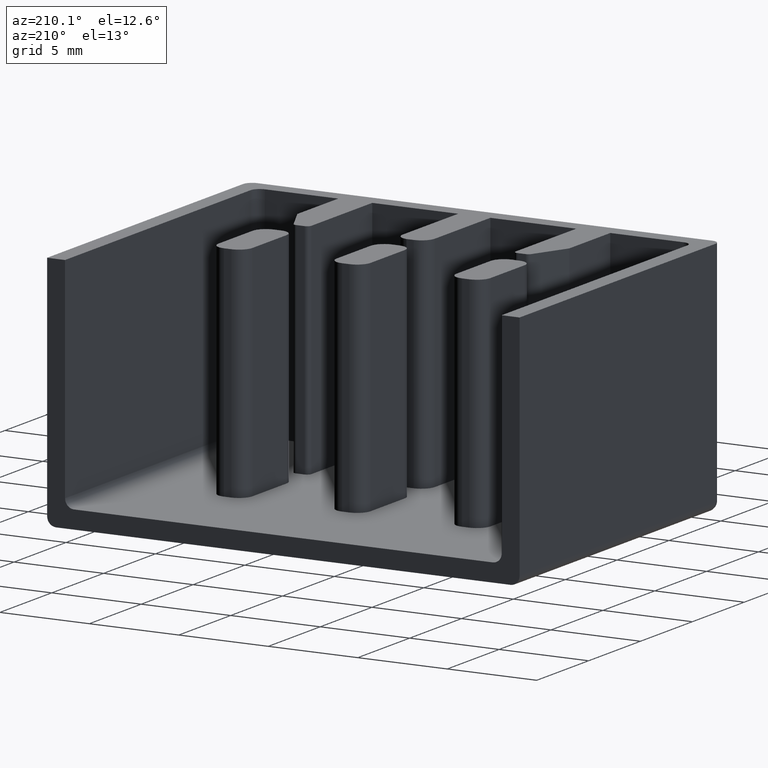
[diagram: clean part render]
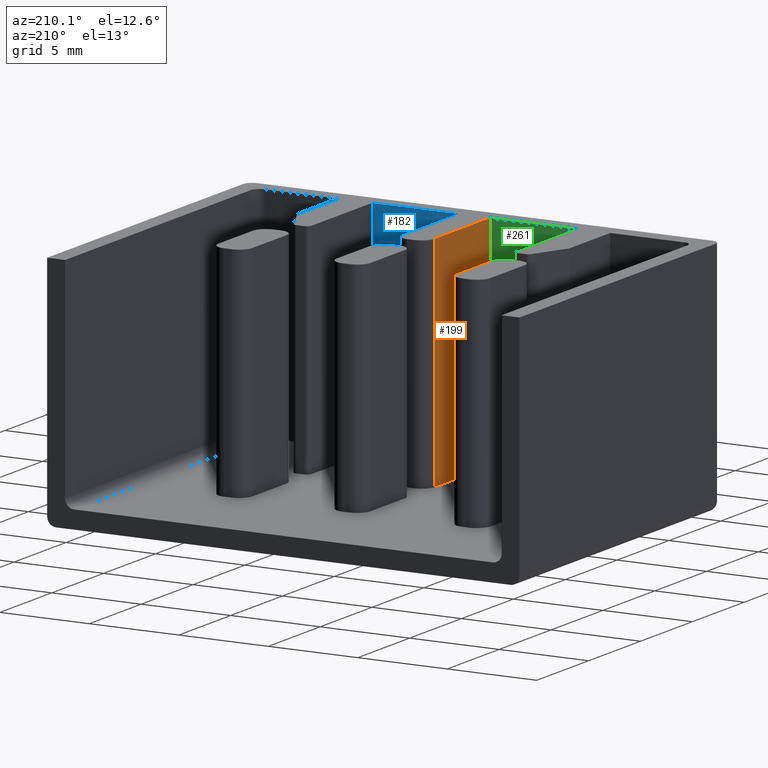
[diagram: same view with three faces highlighted in distinct colors, each labeled with its STEP entity id]
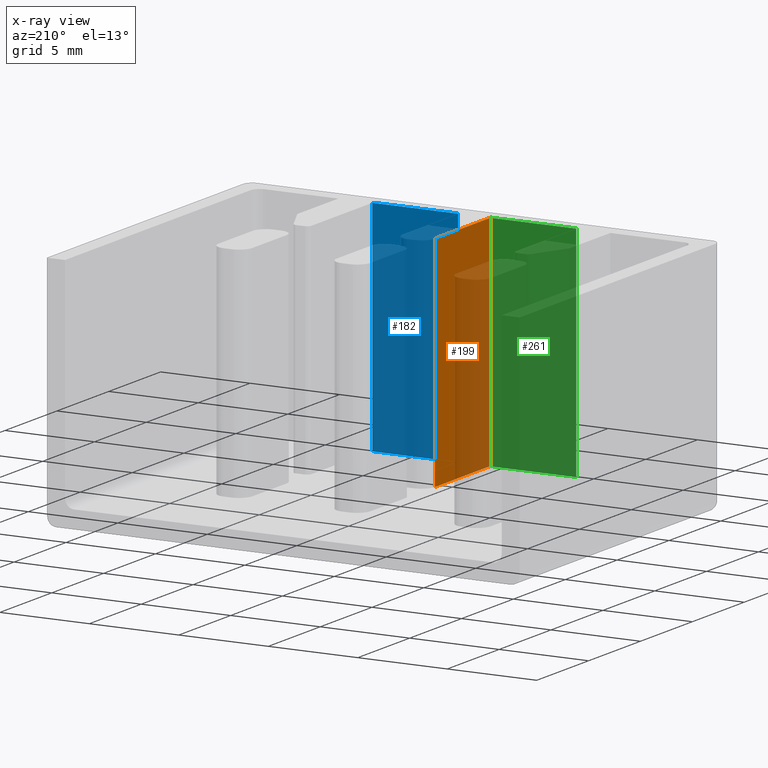
[diagram: x-ray of the same camera — body ghosted, the three highlighted faces saturated]
A machine part, auxiliary view with three faces highlighted in distinct colors.
The next image is the same camera in x-ray (body ghosted, the three faces saturated) — at least one of them is partly hidden behind the body in this view.
Their STEP definitions:

[orange] entity #199 — the highlighted planar face has unit normal (1, 0, -0).
#37 = EDGE_CURVE ( 'NONE', #754, #761, #1384, .T. ) ;
#55 = EDGE_CURVE ( 'NONE', #771, #858, #1492, .T. ) ;
#101 = EDGE_CURVE ( 'NONE', #771, #761, #1615, .T. ) ;
#178 = EDGE_CURVE ( 'NONE', #858, #754, #2214, .T. ) ;
#199 = ADVANCED_FACE ( 'NONE', ( #1701 ), #1680, .F. ) ;
#307 = VECTOR ( 'NONE', #1422, 1000.000000000000000 ) ;
#341 = VECTOR ( 'NONE', #1496, 1000.000000000000000 ) ;
#367 = VECTOR ( 'NONE', #1621, 1000.000000000000000 ) ;
#507 = AXIS2_PLACEMENT_3D ( 'NONE', #1679, #1654, #1658 ) ;
#537 = VECTOR ( 'NONE', #2173, 1000.000000000000000 ) ;
#754 = VERTEX_POINT ( 'NONE', #2010 ) ;
#761 = VERTEX_POINT ( 'NONE', #2002 ) ;
#771 = VERTEX_POINT ( 'NONE', #1976 ) ;
#858 = VERTEX_POINT ( 'NONE', #2068 ) ;
#1109 = ORIENTED_EDGE ( 'NONE', *, *, #55, .T. ) ;
#1113 = ORIENTED_EDGE ( 'NONE', *, *, #101, .F. ) ;
#1130 = ORIENTED_EDGE ( 'NONE', *, *, #178, .T. ) ;
#1150 = ORIENTED_EDGE ( 'NONE', *, *, #37, .T. ) ;
#1316 = EDGE_LOOP ( 'NONE', ( #1113, #1109, #1130, #1150 ) ) ;
#1384 = LINE ( 'NONE', #1406, #307 ) ;
#1406 = CARTESIAN_POINT ( 'NONE',  ( 12.29999999999991700, 6.349999999999885100, 1.000000000000000000 ) ) ;
#1422 = DIRECTION ( 'NONE',  ( 0.0000000000000000000, -1.000000000000000000, 0.0000000000000000000 ) ) ;
#1492 = LINE ( 'NONE', #1495, #341 ) ;
#1495 = CARTESIAN_POINT ( 'NONE',  ( 12.29999999999991700, 6.349999999999885100, 13.30000000000000100 ) ) ;
#1496 = DIRECTION ( 'NONE',  ( 0.0000000000000000000, 1.000000000000000000, 0.0000000000000000000 ) ) ;
#1602 = CARTESIAN_POINT ( 'NONE',  ( 12.29999999999991700, 1.000000000000000900, 19.68905313798537200 ) ) ;
#1615 = LINE ( 'NONE', #1602, #367 ) ;
#1621 = DIRECTION ( 'NONE',  ( -0.0000000000000000000, -0.0000000000000000000, -1.000000000000000000 ) ) ;
#1654 = DIRECTION ( 'NONE',  ( 1.000000000000000000, 0.0000000000000000000, -0.0000000000000000000 ) ) ;
#1658 = DIRECTION ( 'NONE',  ( -0.0000000000000000000, 0.0000000000000000000, -1.000000000000000000 ) ) ;
#1679 = CARTESIAN_POINT ( 'NONE',  ( 12.29999999999991700, 6.349999999999885100, 19.68905313798537200 ) ) ;
#1680 = PLANE ( 'NONE',  #507 ) ;
#1701 = FACE_OUTER_BOUND ( 'NONE', #1316, .T. ) ;
#1976 = CARTESIAN_POINT ( 'NONE',  ( 12.29999999999990300, 1.000000000000000900, 13.30000000000000100 ) ) ;
#2002 = CARTESIAN_POINT ( 'NONE',  ( 12.29999999999991700, 1.000000000000000900, 1.000000000000000000 ) ) ;
#2010 = CARTESIAN_POINT ( 'NONE',  ( 12.29999999999990300, 6.349999999999885100, 1.000000000000000900 ) ) ;
#2068 = CARTESIAN_POINT ( 'NONE',  ( 12.29999999999991700, 6.349999999999885100, 13.30000000000000100 ) ) ;
#2173 = DIRECTION ( 'NONE',  ( -0.0000000000000000000, -0.0000000000000000000, -1.000000000000000000 ) ) ;
#2204 = CARTESIAN_POINT ( 'NONE',  ( 12.29999999999991700, 6.349999999999885100, 19.68905313798537200 ) ) ;
#2214 = LINE ( 'NONE', #2204, #537 ) ;

[blue] entity #182 — the highlighted planar face has unit normal (0, 1, 0).
#3 = EDGE_CURVE ( 'NONE', #740, #831, #1300, .T. ) ;
#7 = EDGE_CURVE ( 'NONE', #903, #740, #1319, .T. ) ;
#86 = EDGE_CURVE ( 'NONE', #842, #831, #1580, .T. ) ;
#114 = EDGE_CURVE ( 'NONE', #903, #842, #1617, .T. ) ;
#182 = ADVANCED_FACE ( 'NONE', ( #2185 ), #2176, .T. ) ;
#272 = VECTOR ( 'NONE', #1284, 1000.000000000000000 ) ;
#285 = VECTOR ( 'NONE', #1301, 1000.000000000000000 ) ;
#377 = VECTOR ( 'NONE', #1578, 1000.000000000000000 ) ;
#455 = VECTOR ( 'NONE', #623, 1000.000000000000000 ) ;
#503 = AXIS2_PLACEMENT_3D ( 'NONE', #2174, #2187, #2200 ) ;
#623 = DIRECTION ( 'NONE',  ( 1.000000000000000000, 0.0000000000000000000, 0.0000000000000000000 ) ) ;
#625 = CARTESIAN_POINT ( 'NONE',  ( 0.0000000000000000000, 1.000000000000000900, 13.30000000000000100 ) ) ;
#740 = VERTEX_POINT ( 'NONE', #1929 ) ;
#831 = VERTEX_POINT ( 'NONE', #2077 ) ;
#842 = VERTEX_POINT ( 'NONE', #2078 ) ;
#865 = ORIENTED_EDGE ( 'NONE', *, *, #3, .F. ) ;
#868 = ORIENTED_EDGE ( 'NONE', *, *, #114, .T. ) ;
#873 = ORIENTED_EDGE ( 'NONE', *, *, #86, .T. ) ;
#880 = ORIENTED_EDGE ( 'NONE', *, *, #7, .F. ) ;
#903 = VERTEX_POINT ( 'NONE', #2066 ) ;
#1276 = EDGE_LOOP ( 'NONE', ( #868, #873, #865, #880 ) ) ;
#1281 = CARTESIAN_POINT ( 'NONE',  ( 14.10000000000007800, 1.000000000000000900, 19.68905313798537200 ) ) ;
#1284 = DIRECTION ( 'NONE',  ( -0.0000000000000000000, -0.0000000000000000000, -1.000000000000000000 ) ) ;
#1300 = LINE ( 'NONE', #1334, #285 ) ;
#1301 = DIRECTION ( 'NONE',  ( 1.000000000000000000, 0.0000000000000000000, 0.0000000000000000000 ) ) ;
#1319 = LINE ( 'NONE', #1281, #272 ) ;
#1334 = CARTESIAN_POINT ( 'NONE',  ( 0.0000000000000000000, 1.000000000000000900, 1.000000000000000000 ) ) ;
#1578 = DIRECTION ( 'NONE',  ( -0.0000000000000000000, -0.0000000000000000000, -1.000000000000000000 ) ) ;
#1580 = LINE ( 'NONE', #1597, #377 ) ;
#1597 = CARTESIAN_POINT ( 'NONE',  ( 18.89999999999998100, 0.9999999999999731300, 19.68905313798537200 ) ) ;
#1617 = LINE ( 'NONE', #625, #455 ) ;
#1929 = CARTESIAN_POINT ( 'NONE',  ( 14.10000000000007800, 1.000000000000000900, 1.000000000000000000 ) ) ;
#2066 = CARTESIAN_POINT ( 'NONE',  ( 14.10000000000007800, 1.000000000000000900, 13.30000000000000100 ) ) ;
#2077 = CARTESIAN_POINT ( 'NONE',  ( 18.89999999999998100, 1.000000000000000900, 1.000000000000000000 ) ) ;
#2078 = CARTESIAN_POINT ( 'NONE',  ( 18.89999999999995200, 1.000000000000000900, 13.30000000000000100 ) ) ;
#2174 = CARTESIAN_POINT ( 'NONE',  ( 0.0000000000000000000, 1.000000000000000000, 13.30000000000000100 ) ) ;
#2176 = PLANE ( 'NONE',  #503 ) ;
#2185 = FACE_OUTER_BOUND ( 'NONE', #1276, .T. ) ;
#2187 = DIRECTION ( 'NONE',  ( 0.0000000000000000000, 1.000000000000000000, 0.0000000000000000000 ) ) ;
#2200 = DIRECTION ( 'NONE',  ( 0.0000000000000000000, -0.0000000000000000000, 1.000000000000000000 ) ) ;

[green] entity #261 — the highlighted planar face has unit normal (0, 1, 0).
#43 = EDGE_CURVE ( 'NONE', #772, #761, #1429, .T. ) ;
#56 = EDGE_CURVE ( 'NONE', #823, #771, #1483, .T. ) ;
#81 = EDGE_CURVE ( 'NONE', #823, #772, #1525, .T. ) ;
#101 = EDGE_CURVE ( 'NONE', #771, #761, #1615, .T. ) ;
#261 = ADVANCED_FACE ( 'NONE', ( #1955 ), #1922, .T. ) ;
#300 = VECTOR ( 'NONE', #1437, 1000.000000000000000 ) ;
#353 = VECTOR ( 'NONE', #1502, 1000.000000000000000 ) ;
#367 = VECTOR ( 'NONE', #1621, 1000.000000000000000 ) ;
#408 = VECTOR ( 'NONE', #1594, 1000.000000000000000 ) ;
#560 = AXIS2_PLACEMENT_3D ( 'NONE', #1943, #1945, #1946 ) ;
#761 = VERTEX_POINT ( 'NONE', #2002 ) ;
#771 = VERTEX_POINT ( 'NONE', #1976 ) ;
#772 = VERTEX_POINT ( 'NONE', #2004 ) ;
#823 = VERTEX_POINT ( 'NONE', #2030 ) ;
#854 = ORIENTED_EDGE ( 'NONE', *, *, #81, .F. ) ;
#916 = ORIENTED_EDGE ( 'NONE', *, *, #101, .T. ) ;
#945 = ORIENTED_EDGE ( 'NONE', *, *, #43, .F. ) ;
#956 = ORIENTED_EDGE ( 'NONE', *, *, #56, .T. ) ;
#1277 = EDGE_LOOP ( 'NONE', ( #945, #854, #956, #916 ) ) ;
#1429 = LINE ( 'NONE', #1440, #300 ) ;
#1437 = DIRECTION ( 'NONE',  ( 1.000000000000000000, 0.0000000000000000000, 0.0000000000000000000 ) ) ;
#1440 = CARTESIAN_POINT ( 'NONE',  ( 0.0000000000000000000, 1.000000000000000900, 1.000000000000000000 ) ) ;
#1483 = LINE ( 'NONE', #1503, #353 ) ;
#1502 = DIRECTION ( 'NONE',  ( 1.000000000000000000, 0.0000000000000000000, 0.0000000000000000000 ) ) ;
#1503 = CARTESIAN_POINT ( 'NONE',  ( 0.0000000000000000000, 1.000000000000000900, 13.30000000000000100 ) ) ;
#1525 = LINE ( 'NONE', #1544, #408 ) ;
#1544 = CARTESIAN_POINT ( 'NONE',  ( 7.500000000000015100, 0.9999999999999731300, 19.68905313798537200 ) ) ;
#1594 = DIRECTION ( 'NONE',  ( -0.0000000000000000000, -0.0000000000000000000, -1.000000000000000000 ) ) ;
#1602 = CARTESIAN_POINT ( 'NONE',  ( 12.29999999999991700, 1.000000000000000900, 19.68905313798537200 ) ) ;
#1615 = LINE ( 'NONE', #1602, #367 ) ;
#1621 = DIRECTION ( 'NONE',  ( -0.0000000000000000000, -0.0000000000000000000, -1.000000000000000000 ) ) ;
#1922 = PLANE ( 'NONE',  #560 ) ;
#1943 = CARTESIAN_POINT ( 'NONE',  ( 0.0000000000000000000, 1.000000000000000000, 13.30000000000000100 ) ) ;
#1945 = DIRECTION ( 'NONE',  ( 0.0000000000000000000, 1.000000000000000000, 0.0000000000000000000 ) ) ;
#1946 = DIRECTION ( 'NONE',  ( 0.0000000000000000000, -0.0000000000000000000, 1.000000000000000000 ) ) ;
#1955 = FACE_OUTER_BOUND ( 'NONE', #1277, .T. ) ;
#1976 = CARTESIAN_POINT ( 'NONE',  ( 12.29999999999990300, 1.000000000000000900, 13.30000000000000100 ) ) ;
#2002 = CARTESIAN_POINT ( 'NONE',  ( 12.29999999999991700, 1.000000000000000900, 1.000000000000000000 ) ) ;
#2004 = CARTESIAN_POINT ( 'NONE',  ( 7.500000000000015100, 1.000000000000000900, 1.000000000000000000 ) ) ;
#2030 = CARTESIAN_POINT ( 'NONE',  ( 7.500000000000015100, 0.9999999999999731300, 13.30000000000000100 ) ) ;